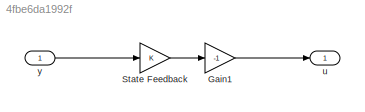
MODEL slx_4fbe6da1992f
KIND model
CONFIG AbsTol = auto
CONFIG EnableMultiTasking = off
CONFIG FixedStep = 0.001
CONFIG MaxStep = auto
CONFIG MinStep = auto
CONFIG RelTol = 1e-3
CONFIG SampleTimeConstraint = Unconstrained
CONFIG SolverName = FixedStepAuto
CONFIG StartTime = 0.0
CONFIG StopTime = 100.0
BLOCK [Gain] Gain1
  Gain = -1
BLOCK [Gain] State Feedback
  Gain = K
  Multiplication = Matrix(K*u)
BLOCK [Outport] u
  OutDataTypeStr = double
  PortDimensions = 1
  SampleTime = [0.001,0]
  SamplingMode = Sample based
  SignalType = real
BLOCK [Inport] y
  OutDataTypeStr = double
  PortDimensions = [2 1]
  SampleTime = 0
  SamplingMode = Sample based
  SignalType = real
LINE Gain1:1 -> u:1
LINE State Feedback:1 -> Gain1:1
LINE y:1 -> State Feedback:1
